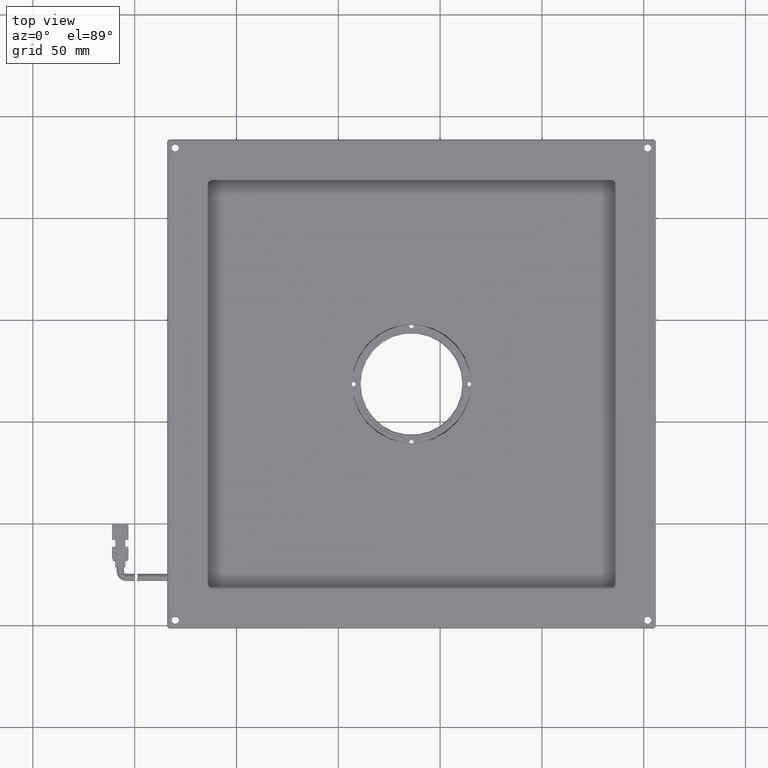
[diagram: clean part render]
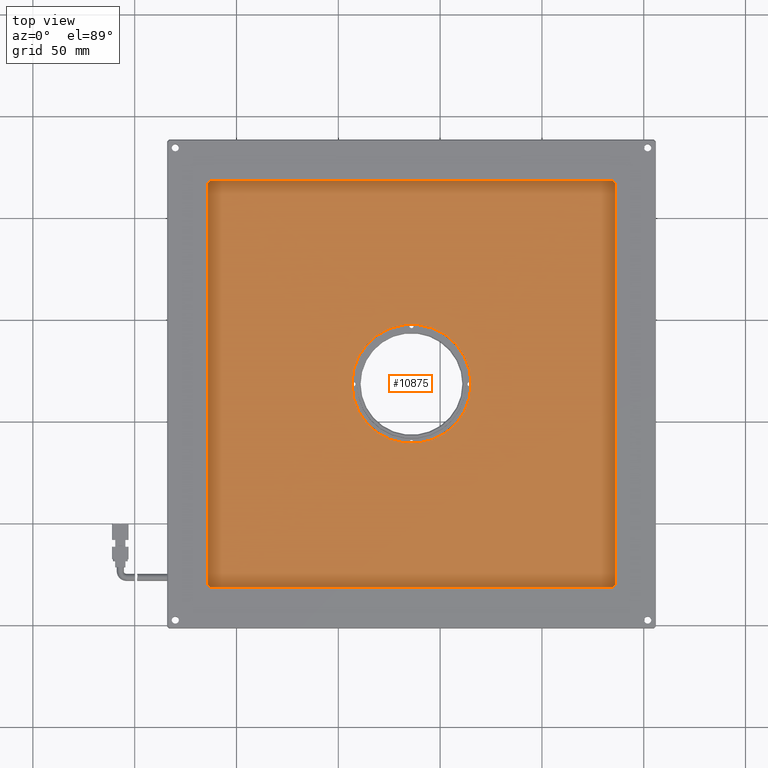
[diagram: same view with one face highlighted and labeled with its STEP entity id]
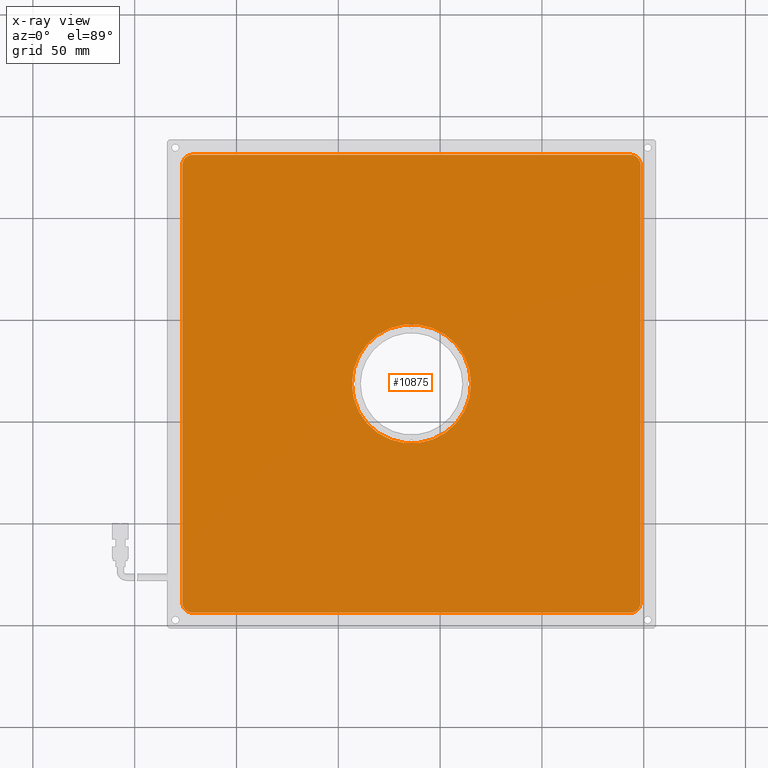
[diagram: x-ray of the same camera — body ghosted, the highlighted face saturated]
A machine part, top view. The second image highlights one B-rep face of the part: STEP entity #10875.
The next image is the same camera in x-ray: the body ghosted, the highlighted face saturated — about 0% of this face is hidden behind the body in this view.
In plain terms, the highlighted planar face has unit normal (-0, 0, 1).
Its self-contained STEP definition (entity closure, byte-faithful):
#33 = CARTESIAN_POINT ( 'NONE',  ( 93.44710554512087700, -88.95622794666790900, 3.800000000000003800 ) ) ;
#51 = DIRECTION ( 'NONE',  ( -0.0000000000000000000, -0.0000000000000000000, -1.000000000000000000 ) ) ;
#55 = VERTEX_POINT ( 'NONE', #10721 ) ;
#192 = EDGE_CURVE ( 'NONE', #13313, #21438, #15361, .T. ) ;
#290 = VECTOR ( 'NONE', #5726, 1000.000000000000000 ) ;
#385 = ORIENTED_EDGE ( 'NONE', *, *, #17524, .T. ) ;
#433 = AXIS2_PLACEMENT_3D ( 'NONE', #11746, #1591, #16909 ) ;
#496 = CARTESIAN_POINT ( 'NONE',  ( 98.44710554512089100, -88.95622794666790900, 3.800000000000003800 ) ) ;
#798 = EDGE_CURVE ( 'NONE', #19813, #55, #16112, .T. ) ;
#866 = CARTESIAN_POINT ( 'NONE',  ( -126.5528944548791700, 131.0437720533321100, 3.800000000000003800 ) ) ;
#979 = FACE_OUTER_BOUND ( 'NONE', #1734, .T. ) ;
#1465 = VECTOR ( 'NONE', #12467, 1000.000000000000000 ) ;
#1587 = CARTESIAN_POINT ( 'NONE',  ( 98.44710554512083400, 126.0437720533321200, 3.800000000000003800 ) ) ;
#1591 = DIRECTION ( 'NONE',  ( 0.0000000000000000000, 0.0000000000000000000, -1.000000000000000000 ) ) ;
#1734 = EDGE_LOOP ( 'NONE', ( #17300, #12940, #12083, #2642, #15251, #21335, #9875, #6168 ) ) ;
#2254 = CARTESIAN_POINT ( 'NONE',  ( 98.44710554512083400, 131.0437720533321100, 3.800000000000003800 ) ) ;
#2642 = ORIENTED_EDGE ( 'NONE', *, *, #8506, .F. ) ;
#3052 = DIRECTION ( 'NONE',  ( -1.000000000000000000, 0.0000000000000000000, 0.0000000000000000000 ) ) ;
#3484 = AXIS2_PLACEMENT_3D ( 'NONE', #13113, #13259, #3052 ) ;
#3601 = CARTESIAN_POINT ( 'NONE',  ( -126.5528944548791400, -93.95622794666789400, 3.800000000000003800 ) ) ;
#3773 = AXIS2_PLACEMENT_3D ( 'NONE', #33, #20433, #10488 ) ;
#4791 = CARTESIAN_POINT ( 'NONE',  ( 15.19710554512084300, 18.54377205333212000, 3.800000000000003800 ) ) ;
#4826 = CARTESIAN_POINT ( 'NONE',  ( -126.5528944548791700, 126.0437720533321200, 3.800000000000003800 ) ) ;
#5038 = DIRECTION ( 'NONE',  ( -1.000000000000000000, 0.0000000000000000000, 0.0000000000000000000 ) ) ;
#5565 = CARTESIAN_POINT ( 'NONE',  ( 93.44710554512087700, -93.95622794666790900, 3.800000000000003800 ) ) ;
#5631 = PLANE ( 'NONE',  #14059 ) ;
#5726 = DIRECTION ( 'NONE',  ( -2.467162276944791900E-016, 1.000000000000000000, -0.0000000000000000000 ) ) ;
#5921 = VERTEX_POINT ( 'NONE', #496 ) ;
#5971 = CARTESIAN_POINT ( 'NONE',  ( -121.5528944548791400, 126.0437720533321200, 3.800000000000003800 ) ) ;
#6168 = ORIENTED_EDGE ( 'NONE', *, *, #9749, .F. ) ;
#6195 = AXIS2_PLACEMENT_3D ( 'NONE', #11723, #20338, #5038 ) ;
#6454 = AXIS2_PLACEMENT_3D ( 'NONE', #5971, #16167, #7977 ) ;
#7655 = EDGE_CURVE ( 'NONE', #20748, #55, #8894, .T. ) ;
#7977 = DIRECTION ( 'NONE',  ( -1.000000000000000000, 0.0000000000000000000, 0.0000000000000000000 ) ) ;
#8126 = CARTESIAN_POINT ( 'NONE',  ( 93.44710554512082000, 131.0437720533321100, 3.800000000000003800 ) ) ;
#8369 = VERTEX_POINT ( 'NONE', #1587 ) ;
#8506 = EDGE_CURVE ( 'NONE', #5921, #12268, #19195, .T. ) ;
#8894 = CIRCLE ( 'NONE', #6195, 4.999999999999990200 ) ;
#8949 = CARTESIAN_POINT ( 'NONE',  ( -43.30289445487915900, 18.54377205333211600, 3.800000000000003800 ) ) ;
#9041 = CARTESIAN_POINT ( 'NONE',  ( -121.5528944548791400, 131.0437720533321100, 3.800000000000003800 ) ) ;
#9113 = CIRCLE ( 'NONE', #18828, 29.25000000000000000 ) ;
#9445 = VECTOR ( 'NONE', #11805, 1000.000000000000000 ) ;
#9749 = EDGE_CURVE ( 'NONE', #19813, #21438, #19125, .T. ) ;
#9875 = ORIENTED_EDGE ( 'NONE', *, *, #192, .T. ) ;
#10488 = DIRECTION ( 'NONE',  ( -1.000000000000000000, 0.0000000000000000000, 0.0000000000000000000 ) ) ;
#10721 = CARTESIAN_POINT ( 'NONE',  ( -126.5528944548791100, -88.95622794666790900, 3.800000000000003800 ) ) ;
#10875 = ADVANCED_FACE ( 'NONE', ( #979, #13752 ), #5631, .T. ) ;
#11248 = CARTESIAN_POINT ( 'NONE',  ( -121.5528944548791100, -93.95622794666789400, 3.800000000000003800 ) ) ;
#11265 = VERTEX_POINT ( 'NONE', #4791 ) ;
#11383 = EDGE_CURVE ( 'NONE', #20748, #12268, #18733, .T. ) ;
#11617 = VECTOR ( 'NONE', #16232, 1000.000000000000000 ) ;
#11723 = CARTESIAN_POINT ( 'NONE',  ( -121.5528944548791100, -88.95622794666789400, 3.800000000000003800 ) ) ;
#11746 = CARTESIAN_POINT ( 'NONE',  ( 93.44710554512082000, 126.0437720533321200, 3.800000000000003800 ) ) ;
#11761 = CARTESIAN_POINT ( 'NONE',  ( -14.05289445487915900, 18.54377205333211600, 3.800000000000003800 ) ) ;
#11805 = DIRECTION ( 'NONE',  ( 1.233581138472396000E-016, -1.000000000000000000, -0.0000000000000000000 ) ) ;
#11956 = CARTESIAN_POINT ( 'NONE',  ( -126.5528944548791700, 131.0437720533321100, 3.800000000000003800 ) ) ;
#12083 = ORIENTED_EDGE ( 'NONE', *, *, #11383, .T. ) ;
#12221 = LINE ( 'NONE', #2254, #290 ) ;
#12268 = VERTEX_POINT ( 'NONE', #5565 ) ;
#12467 = DIRECTION ( 'NONE',  ( 1.000000000000000000, 0.0000000000000000000, -0.0000000000000000000 ) ) ;
#12940 = ORIENTED_EDGE ( 'NONE', *, *, #7655, .F. ) ;
#13113 = CARTESIAN_POINT ( 'NONE',  ( -14.05289445487915900, 18.54377205333211600, 3.800000000000003800 ) ) ;
#13259 = DIRECTION ( 'NONE',  ( -0.0000000000000000000, -0.0000000000000000000, -1.000000000000000000 ) ) ;
#13313 = VERTEX_POINT ( 'NONE', #8126 ) ;
#13752 = FACE_BOUND ( 'NONE', #15809, .T. ) ;
#14059 = AXIS2_PLACEMENT_3D ( 'NONE', #19106, #14204, #15527 ) ;
#14204 = DIRECTION ( 'NONE',  ( -0.0000000000000000000, 0.0000000000000000000, 1.000000000000000000 ) ) ;
#15251 = ORIENTED_EDGE ( 'NONE', *, *, #17846, .T. ) ;
#15361 = LINE ( 'NONE', #866, #11617 ) ;
#15527 = DIRECTION ( 'NONE',  ( 1.000000000000000000, 0.0000000000000000000, 0.0000000000000000000 ) ) ;
#15809 = EDGE_LOOP ( 'NONE', ( #19662, #385 ) ) ;
#16112 = LINE ( 'NONE', #11956, #9445 ) ;
#16167 = DIRECTION ( 'NONE',  ( 0.0000000000000000000, 0.0000000000000000000, -1.000000000000000000 ) ) ;
#16232 = DIRECTION ( 'NONE',  ( -1.000000000000000000, -0.0000000000000000000, -0.0000000000000000000 ) ) ;
#16909 = DIRECTION ( 'NONE',  ( -1.000000000000000000, 0.0000000000000000000, 0.0000000000000000000 ) ) ;
#17067 = DIRECTION ( 'NONE',  ( -1.000000000000000000, 0.0000000000000000000, 0.0000000000000000000 ) ) ;
#17127 = EDGE_CURVE ( 'NONE', #19492, #11265, #9113, .T. ) ;
#17300 = ORIENTED_EDGE ( 'NONE', *, *, #798, .T. ) ;
#17524 = EDGE_CURVE ( 'NONE', #11265, #19492, #19700, .T. ) ;
#17846 = EDGE_CURVE ( 'NONE', #5921, #8369, #12221, .T. ) ;
#18733 = LINE ( 'NONE', #3601, #1465 ) ;
#18828 = AXIS2_PLACEMENT_3D ( 'NONE', #11761, #51, #17067 ) ;
#19106 = CARTESIAN_POINT ( 'NONE',  ( -126.5528944548791400, -93.95622794666789400, 3.800000000000003800 ) ) ;
#19125 = CIRCLE ( 'NONE', #6454, 4.999999999999990200 ) ;
#19195 = CIRCLE ( 'NONE', #3773, 5.000000000000004400 ) ;
#19460 = EDGE_CURVE ( 'NONE', #13313, #8369, #20826, .T. ) ;
#19492 = VERTEX_POINT ( 'NONE', #8949 ) ;
#19662 = ORIENTED_EDGE ( 'NONE', *, *, #17127, .T. ) ;
#19700 = CIRCLE ( 'NONE', #3484, 29.25000000000000000 ) ;
#19813 = VERTEX_POINT ( 'NONE', #4826 ) ;
#20338 = DIRECTION ( 'NONE',  ( -0.0000000000000000000, 0.0000000000000000000, -1.000000000000000000 ) ) ;
#20433 = DIRECTION ( 'NONE',  ( 0.0000000000000000000, 0.0000000000000000000, -1.000000000000000000 ) ) ;
#20748 = VERTEX_POINT ( 'NONE', #11248 ) ;
#20826 = CIRCLE ( 'NONE', #433, 5.000000000000004400 ) ;
#21335 = ORIENTED_EDGE ( 'NONE', *, *, #19460, .F. ) ;
#21438 = VERTEX_POINT ( 'NONE', #9041 ) ;